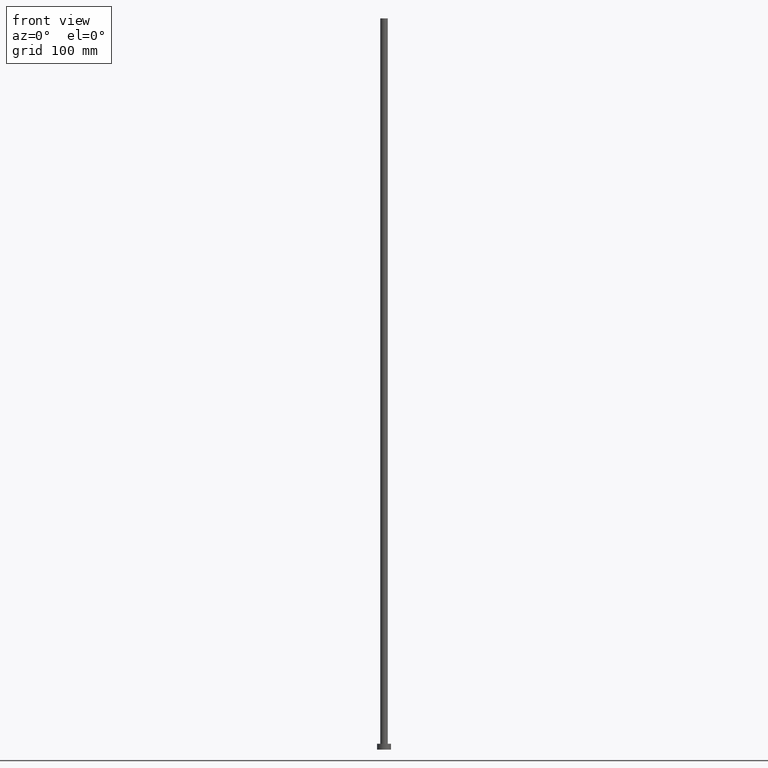
[diagram: clean part render]
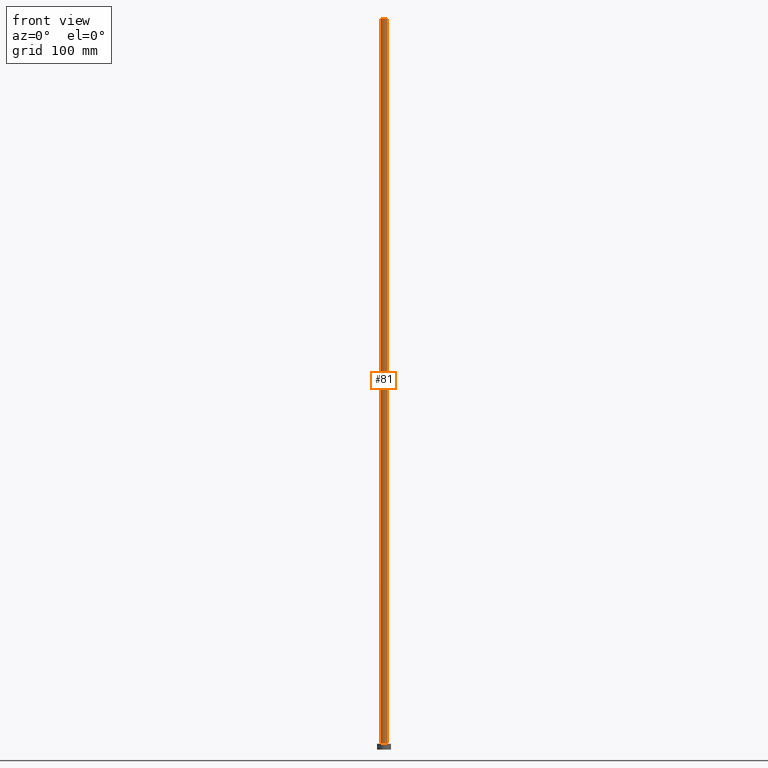
[diagram: same view with one face highlighted and labeled with its STEP entity id]
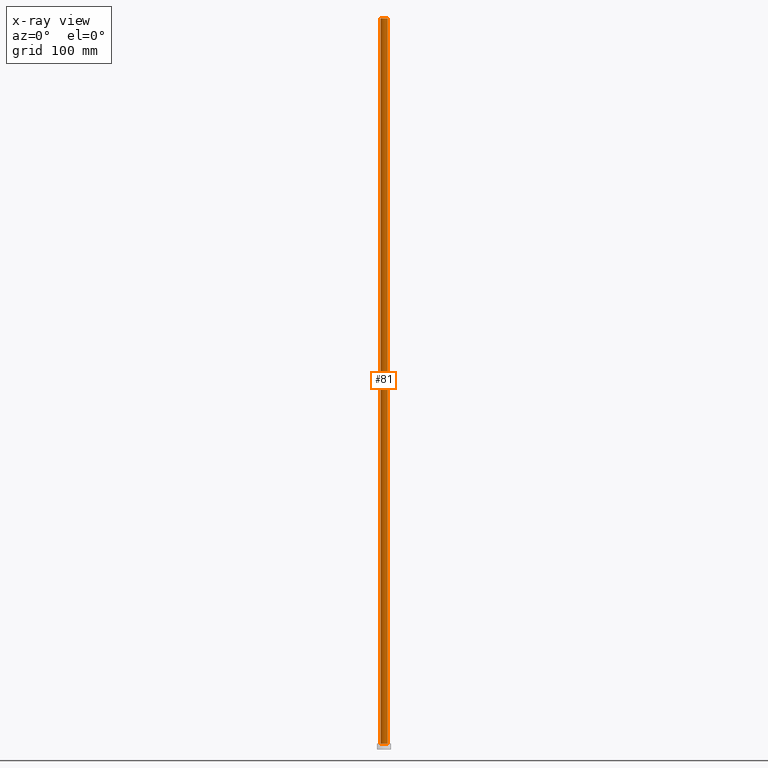
[diagram: x-ray of the same camera — body ghosted, the highlighted face saturated]
A machine part, front view. The second image highlights one B-rep face of the part: STEP entity #81.
The next image is the same camera in x-ray: the body ghosted, the highlighted face saturated — about 0% of this face is hidden behind the body in this view.
In plain terms, the highlighted cylindrical surface (edge-blend (fillet) strip) has radius 3.25 mm, axis along (-0, -0, -1).
Its self-contained STEP definition (entity closure, byte-faithful):
#1 = DIRECTION ( 'NONE',  ( 0.000000000000000000, 0.000000000000000000, 1.000000000000000000 ) ) ;
#6 = FACE_OUTER_BOUND ( 'NONE', #31, .T. ) ;
#9 = CARTESIAN_POINT ( 'NONE',  ( 0.000000000000000000, 0.000000000000000000, 630.0000000000000000 ) ) ;
#13 = CARTESIAN_POINT ( 'NONE',  ( 3.250000000000000444, 3.980102097228898231E-16, 630.0000000000000000 ) ) ;
#24 = DIRECTION ( 'NONE',  ( -0.000000000000000000, -0.000000000000000000, -1.000000000000000000 ) ) ;
#25 = DIRECTION ( 'NONE',  ( -1.000000000000000000, 0.000000000000000000, 0.000000000000000000 ) ) ;
#27 = CARTESIAN_POINT ( 'NONE',  ( -3.250000000000000444, 0.000000000000000000, 630.0000000000000000 ) ) ;
#30 = DIRECTION ( 'NONE',  ( 1.000000000000000000, 0.000000000000000000, 0.000000000000000000 ) ) ;
#31 = EDGE_LOOP ( 'NONE', ( #177, #238, #119, #197 ) ) ;
#40 = AXIS2_PLACEMENT_3D ( 'NONE', #9, #24, #25 ) ;
#43 = CIRCLE ( 'NONE', #51, 3.250000000000000444 ) ;
#48 = DIRECTION ( 'NONE',  ( 1.000000000000000000, 0.000000000000000000, 0.000000000000000000 ) ) ;
#50 = EDGE_CURVE ( 'NONE', #221, #61, #234, .T. ) ;
#51 = AXIS2_PLACEMENT_3D ( 'NONE', #94, #1, #48 ) ;
#61 = VERTEX_POINT ( 'NONE', #189 ) ;
#81 = ADVANCED_FACE ( 'NONE', ( #6 ), #170, .T. ) ;
#86 = CARTESIAN_POINT ( 'NONE',  ( 3.250000000000000444, 3.980102097228898231E-16, 5.000000000000000000 ) ) ;
#91 = DIRECTION ( 'NONE',  ( -0.000000000000000000, -0.000000000000000000, -1.000000000000000000 ) ) ;
#94 = CARTESIAN_POINT ( 'NONE',  ( 0.000000000000000000, 0.000000000000000000, 630.0000000000000000 ) ) ;
#96 = VECTOR ( 'NONE', #91, 1000.000000000000000 ) ;
#102 = AXIS2_PLACEMENT_3D ( 'NONE', #241, #110, #30 ) ;
#110 = DIRECTION ( 'NONE',  ( 0.000000000000000000, 0.000000000000000000, 1.000000000000000000 ) ) ;
#111 = CARTESIAN_POINT ( 'NONE',  ( -3.250000000000000444, 0.000000000000000000, 630.0000000000000000 ) ) ;
#116 = CIRCLE ( 'NONE', #102, 3.250000000000000444 ) ;
#119 = ORIENTED_EDGE ( 'NONE', *, *, #50, .T. ) ;
#133 = VERTEX_POINT ( 'NONE', #86 ) ;
#139 = VECTOR ( 'NONE', #228, 1000.000000000000000 ) ;
#140 = LINE ( 'NONE', #144, #96 ) ;
#144 = CARTESIAN_POINT ( 'NONE',  ( 3.250000000000000444, 3.980102097228898231E-16, 630.0000000000000000 ) ) ;
#145 = EDGE_CURVE ( 'NONE', #221, #175, #43, .T. ) ;
#155 = EDGE_CURVE ( 'NONE', #175, #133, #140, .T. ) ;
#170 = CYLINDRICAL_SURFACE ( 'NONE', #40, 3.250000000000000444 ) ;
#175 = VERTEX_POINT ( 'NONE', #13 ) ;
#177 = ORIENTED_EDGE ( 'NONE', *, *, #155, .F. ) ;
#189 = CARTESIAN_POINT ( 'NONE',  ( -3.250000000000000444, 0.000000000000000000, 5.000000000000000000 ) ) ;
#197 = ORIENTED_EDGE ( 'NONE', *, *, #198, .T. ) ;
#198 = EDGE_CURVE ( 'NONE', #61, #133, #116, .T. ) ;
#221 = VERTEX_POINT ( 'NONE', #27 ) ;
#228 = DIRECTION ( 'NONE',  ( -0.000000000000000000, -0.000000000000000000, -1.000000000000000000 ) ) ;
#234 = LINE ( 'NONE', #111, #139 ) ;
#238 = ORIENTED_EDGE ( 'NONE', *, *, #145, .F. ) ;
#241 = CARTESIAN_POINT ( 'NONE',  ( 0.000000000000000000, 0.000000000000000000, 5.000000000000000000 ) ) ;